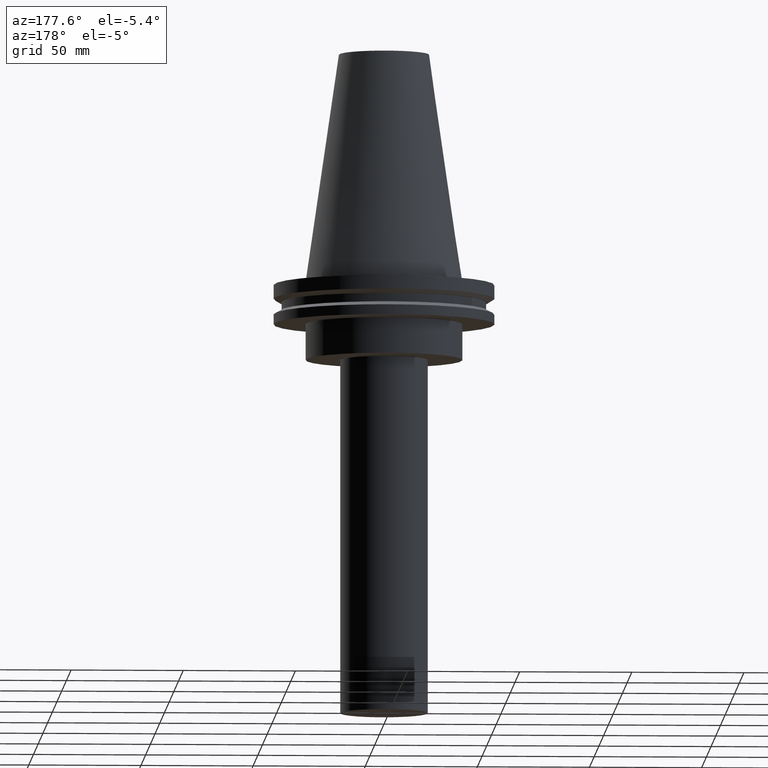
[diagram: clean part render]
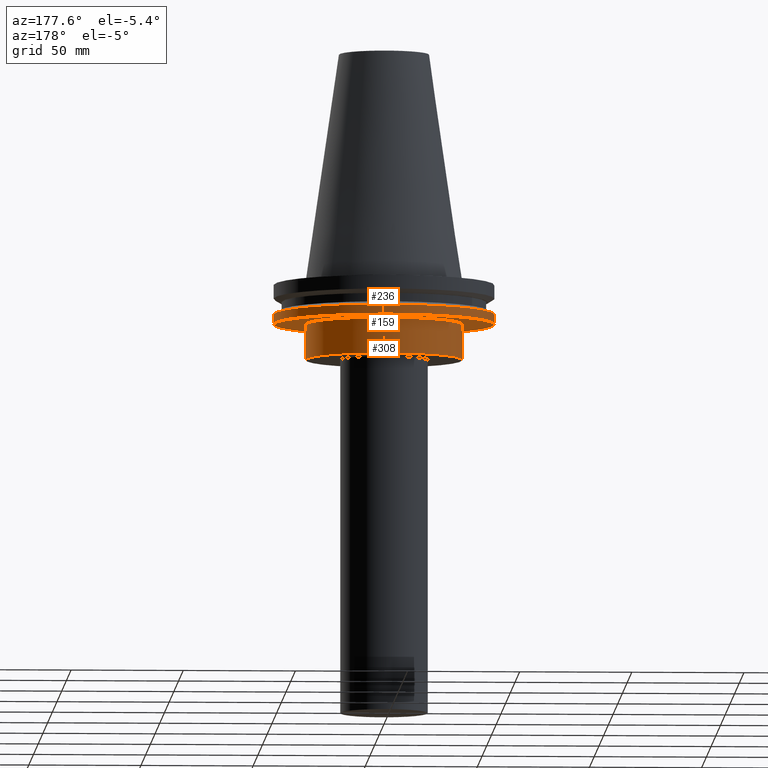
[diagram: same view with one multi-face feature highlighted, each face labeled with its STEP entity id]
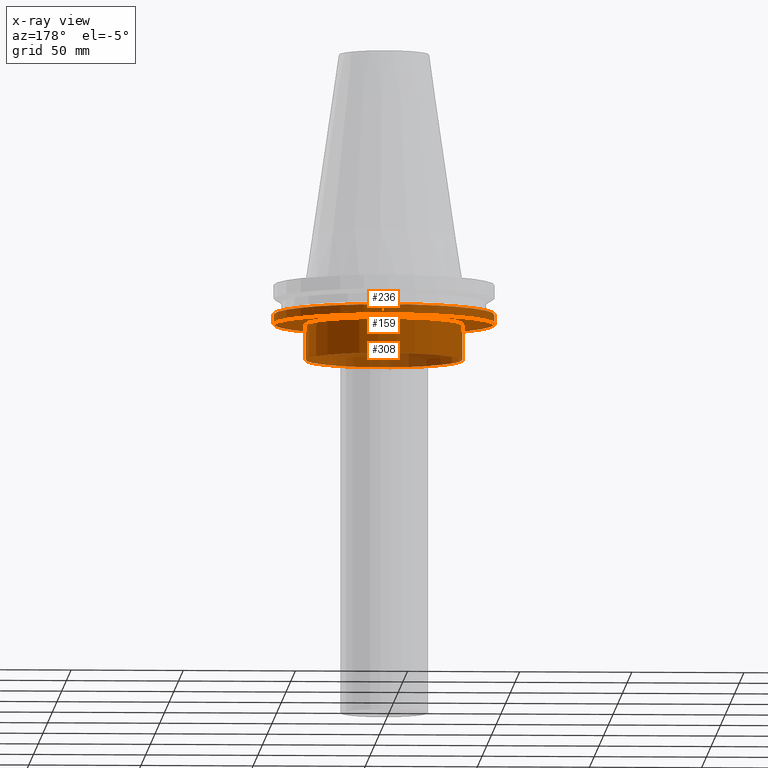
[diagram: x-ray of the same camera — body ghosted, the whole feature saturated]
A machine part, auxiliary view. The highlighted faces form ONE feature: a stepped (counterbored) hole: 2 coaxial cylindrical walls of radii 34.925 -> 49.215 mm joined by 1 annular planar shoulder face(s). The faces share edges in the B-rep.
The next image is the same camera in x-ray: the body ghosted and the whole hole feature saturated, so the bore chain is visible through the body.
Their STEP definitions:
[1] entity #236 (Cylinder):
#4 = EDGE_CURVE ( 'NONE', #203, #203, #143, .T. ) ;
#24 = EDGE_CURVE ( 'NONE', #233, #233, #136, .T. ) ;
#47 = DIRECTION ( 'NONE',  ( 1.000000000000000000, 0.000000000000000000, 0.000000000000000000 ) ) ;
#82 = DIRECTION ( 'NONE',  ( -0.000000000000000000, -0.000000000000000000, 1.000000000000000000 ) ) ;
#85 = CARTESIAN_POINT ( 'NONE',  ( 0.000000000000000000, 0.000000000000000000, -19.04999999999999716 ) ) ;
#90 = EDGE_LOOP ( 'NONE', ( #312 ) ) ;
#93 = AXIS2_PLACEMENT_3D ( 'NONE', #85, #118, #179 ) ;
#94 = FACE_OUTER_BOUND ( 'NONE', #90, .T. ) ;
#108 = CARTESIAN_POINT ( 'NONE',  ( 49.21499999999998920, 0.000000000000000000, -14.65761014474876944 ) ) ;
#118 = DIRECTION ( 'NONE',  ( -0.000000000000000000, -0.000000000000000000, 1.000000000000000000 ) ) ;
#121 = AXIS2_PLACEMENT_3D ( 'NONE', #395, #82, #342 ) ;
#123 = AXIS2_PLACEMENT_3D ( 'NONE', #190, #377, #47 ) ;
#136 = CIRCLE ( 'NONE', #93, 49.21499999999998920 ) ;
#143 = CIRCLE ( 'NONE', #121, 49.21499999999998920 ) ;
#179 = DIRECTION ( 'NONE',  ( 1.000000000000000000, 0.000000000000000000, 0.000000000000000000 ) ) ;
#190 = CARTESIAN_POINT ( 'NONE',  ( 0.000000000000000000, 0.000000000000000000, 101.5999999999999943 ) ) ;
#201 = CARTESIAN_POINT ( 'NONE',  ( 49.21499999999998920, 0.000000000000000000, -19.04999999999999716 ) ) ;
#203 = VERTEX_POINT ( 'NONE', #108 ) ;
#227 = ORIENTED_EDGE ( 'NONE', *, *, #4, .F. ) ;
#233 = VERTEX_POINT ( 'NONE', #201 ) ;
#236 = ADVANCED_FACE ( 'NONE', ( #344, #94 ), #251, .T. ) ;
#251 = CYLINDRICAL_SURFACE ( 'NONE', #123, 49.21499999999998920 ) ;
#312 = ORIENTED_EDGE ( 'NONE', *, *, #24, .T. ) ;
#342 = DIRECTION ( 'NONE',  ( 1.000000000000000000, 0.000000000000000000, 0.000000000000000000 ) ) ;
#344 = FACE_OUTER_BOUND ( 'NONE', #364, .T. ) ;
#364 = EDGE_LOOP ( 'NONE', ( #227 ) ) ;
#377 = DIRECTION ( 'NONE',  ( -0.000000000000000000, -0.000000000000000000, 1.000000000000000000 ) ) ;
#395 = CARTESIAN_POINT ( 'NONE',  ( 0.000000000000000000, 0.000000000000000000, -14.65761014474876944 ) ) ;
[2] entity #308 (Cylinder):
#1 = VERTEX_POINT ( 'NONE', #309 ) ;
#32 = VERTEX_POINT ( 'NONE', #369 ) ;
#50 = CARTESIAN_POINT ( 'NONE',  ( 0.000000000000000000, 0.000000000000000000, 101.5999999999999943 ) ) ;
#102 = DIRECTION ( 'NONE',  ( -0.000000000000000000, -0.000000000000000000, 1.000000000000000000 ) ) ;
#111 = ORIENTED_EDGE ( 'NONE', *, *, #164, .F. ) ;
#114 = EDGE_LOOP ( 'NONE', ( #339 ) ) ;
#139 = DIRECTION ( 'NONE',  ( 1.000000000000000000, 0.000000000000000000, 0.000000000000000000 ) ) ;
#144 = CIRCLE ( 'NONE', #317, 34.92499999999999716 ) ;
#164 = EDGE_CURVE ( 'NONE', #32, #32, #144, .T. ) ;
#187 = EDGE_CURVE ( 'NONE', #1, #1, #198, .T. ) ;
#192 = DIRECTION ( 'NONE',  ( 1.000000000000000000, 0.000000000000000000, 0.000000000000000000 ) ) ;
#196 = CARTESIAN_POINT ( 'NONE',  ( 0.000000000000000000, 0.000000000000000000, -35.00000000000000000 ) ) ;
#198 = CIRCLE ( 'NONE', #386, 34.92499999999999716 ) ;
#200 = CYLINDRICAL_SURFACE ( 'NONE', #392, 34.92499999999999716 ) ;
#234 = FACE_OUTER_BOUND ( 'NONE', #235, .T. ) ;
#235 = EDGE_LOOP ( 'NONE', ( #111 ) ) ;
#308 = ADVANCED_FACE ( 'NONE', ( #234, #388 ), #200, .T. ) ;
#309 = CARTESIAN_POINT ( 'NONE',  ( 34.92499999999999716, 0.000000000000000000, -35.00000000000000000 ) ) ;
#317 = AXIS2_PLACEMENT_3D ( 'NONE', #352, #353, #192 ) ;
#325 = DIRECTION ( 'NONE',  ( -0.000000000000000000, -0.000000000000000000, 1.000000000000000000 ) ) ;
#339 = ORIENTED_EDGE ( 'NONE', *, *, #187, .T. ) ;
#347 = DIRECTION ( 'NONE',  ( 1.000000000000000000, 0.000000000000000000, 0.000000000000000000 ) ) ;
#352 = CARTESIAN_POINT ( 'NONE',  ( 0.000000000000000000, 0.000000000000000000, -19.04999999999999716 ) ) ;
#353 = DIRECTION ( 'NONE',  ( -0.000000000000000000, -0.000000000000000000, 1.000000000000000000 ) ) ;
#369 = CARTESIAN_POINT ( 'NONE',  ( 34.92499999999999716, 0.000000000000000000, -19.04999999999999716 ) ) ;
#386 = AXIS2_PLACEMENT_3D ( 'NONE', #196, #102, #347 ) ;
#388 = FACE_OUTER_BOUND ( 'NONE', #114, .T. ) ;
#392 = AXIS2_PLACEMENT_3D ( 'NONE', #50, #325, #139 ) ;
[3] entity #159 (Plane):
#24 = EDGE_CURVE ( 'NONE', #233, #233, #136, .T. ) ;
#27 = EDGE_LOOP ( 'NONE', ( #52 ) ) ;
#32 = VERTEX_POINT ( 'NONE', #369 ) ;
#41 = FACE_BOUND ( 'NONE', #27, .T. ) ;
#52 = ORIENTED_EDGE ( 'NONE', *, *, #164, .T. ) ;
#85 = CARTESIAN_POINT ( 'NONE',  ( 0.000000000000000000, 0.000000000000000000, -19.04999999999999716 ) ) ;
#87 = EDGE_LOOP ( 'NONE', ( #152 ) ) ;
#93 = AXIS2_PLACEMENT_3D ( 'NONE', #85, #118, #179 ) ;
#98 = DIRECTION ( 'NONE',  ( 0.000000000000000000, -0.000000000000000000, 1.000000000000000000 ) ) ;
#100 = FACE_OUTER_BOUND ( 'NONE', #87, .T. ) ;
#118 = DIRECTION ( 'NONE',  ( -0.000000000000000000, -0.000000000000000000, 1.000000000000000000 ) ) ;
#136 = CIRCLE ( 'NONE', #93, 49.21499999999998920 ) ;
#144 = CIRCLE ( 'NONE', #317, 34.92499999999999716 ) ;
#152 = ORIENTED_EDGE ( 'NONE', *, *, #24, .F. ) ;
#159 = ADVANCED_FACE ( 'NONE', ( #100, #41 ), #350, .F. ) ;
#164 = EDGE_CURVE ( 'NONE', #32, #32, #144, .T. ) ;
#179 = DIRECTION ( 'NONE',  ( 1.000000000000000000, 0.000000000000000000, 0.000000000000000000 ) ) ;
#192 = DIRECTION ( 'NONE',  ( 1.000000000000000000, 0.000000000000000000, 0.000000000000000000 ) ) ;
#201 = CARTESIAN_POINT ( 'NONE',  ( 49.21499999999998920, 0.000000000000000000, -19.04999999999999716 ) ) ;
#233 = VERTEX_POINT ( 'NONE', #201 ) ;
#242 = AXIS2_PLACEMENT_3D ( 'NONE', #382, #98, #285 ) ;
#285 = DIRECTION ( 'NONE',  ( 1.000000000000000000, 0.000000000000000000, 0.000000000000000000 ) ) ;
#317 = AXIS2_PLACEMENT_3D ( 'NONE', #352, #353, #192 ) ;
#350 = PLANE ( 'NONE',  #242 ) ;
#352 = CARTESIAN_POINT ( 'NONE',  ( 0.000000000000000000, 0.000000000000000000, -19.04999999999999716 ) ) ;
#353 = DIRECTION ( 'NONE',  ( -0.000000000000000000, -0.000000000000000000, 1.000000000000000000 ) ) ;
#369 = CARTESIAN_POINT ( 'NONE',  ( 34.92499999999999716, 0.000000000000000000, -19.04999999999999716 ) ) ;
#382 = CARTESIAN_POINT ( 'NONE',  ( 0.000000000000000000, 49.21499999999998920, -19.04999999999999716 ) ) ;